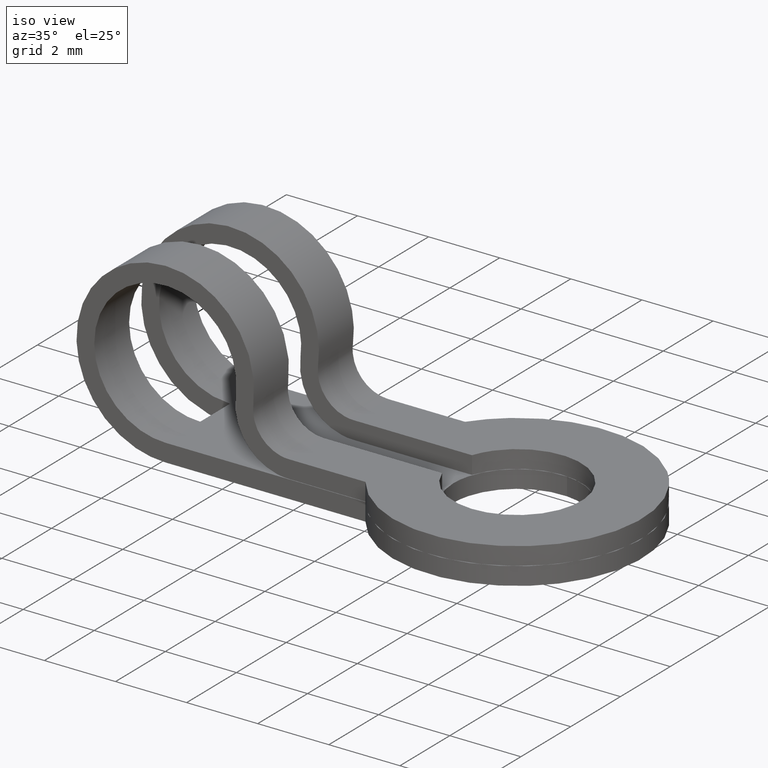
[diagram: clean part render]
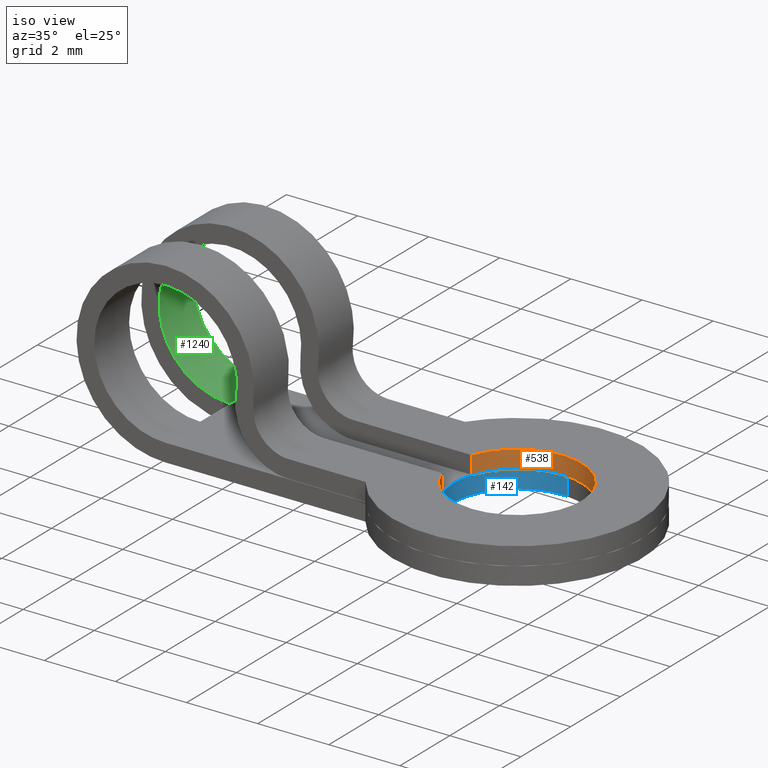
[diagram: same view with three faces highlighted in distinct colors, each labeled with its STEP entity id]
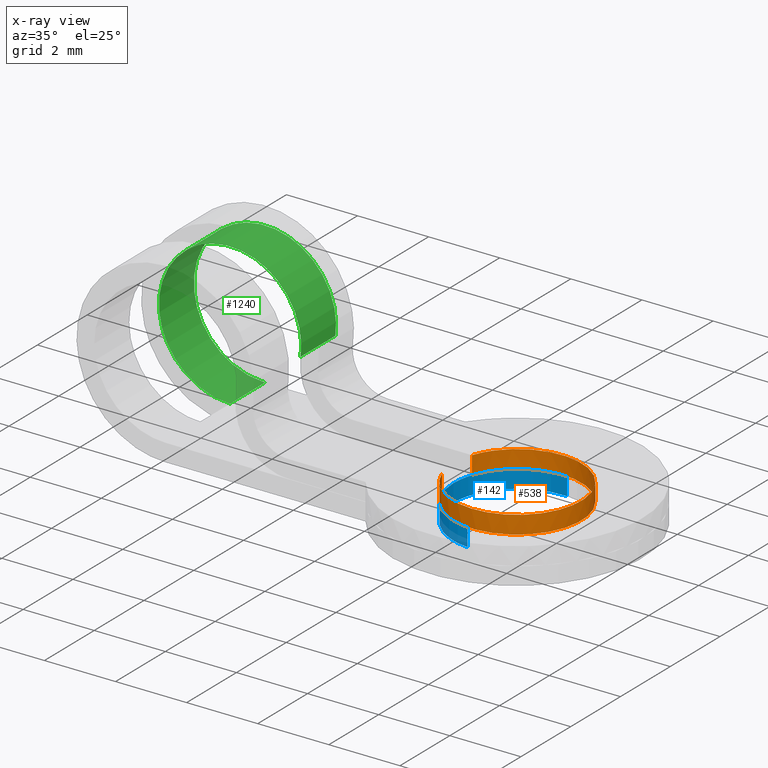
[diagram: x-ray of the same camera — body ghosted, the three highlighted faces saturated]
A machine part, iso view with three faces highlighted in distinct colors.
The next image is the same camera in x-ray (body ghosted, the three faces saturated) — at least one of them is partly hidden behind the body in this view.
Their STEP definitions:

[orange] entity #538 — the highlighted face is a freeform B-spline surface patch.
#278=CARTESIAN_POINT('',(7.202943725152349,0.600000000000156,-1.990000000000045));
#279=VERTEX_POINT('',#278);
#285=CARTESIAN_POINT('',(7.202943725152349,0.600000000000156,-1.490000000000000));
#286=VERTEX_POINT('',#285);
#287=CARTESIAN_POINT('',(7.202943725152349,0.600000000000156,-1.990000000000045));
#288=CARTESIAN_POINT('',(7.202943725152349,0.600000000000156,-1.490000000000000));
#289=QUASI_UNIFORM_CURVE('',1,(#287,#288),.UNSPECIFIED.,.F.,.U.);
#290=EDGE_CURVE('',#279,#286,#289,.T.);
#410=CARTESIAN_POINT('',(7.202943725152309,-0.600000000000045,-1.490000000000000));
#411=VERTEX_POINT('',#410);
#417=CARTESIAN_POINT('',(7.202943725152309,-0.600000000000045,-1.990000000000045));
#418=VERTEX_POINT('',#417);
#419=CARTESIAN_POINT('',(7.202943725152309,-0.600000000000045,-1.490000000000000));
#420=CARTESIAN_POINT('',(7.202943725152309,-0.600000000000045,-1.990000000000045));
#421=QUASI_UNIFORM_CURVE('',1,(#419,#420),.UNSPECIFIED.,.F.,.U.);
#422=EDGE_CURVE('',#411,#418,#421,.T.);
#470=CARTESIAN_POINT('',(7.178915998559314,-0.527133626308276,-1.477499999999999));
#471=CARTESIAN_POINT('',(7.178915998559314,-0.527133626308276,-2.002812500000046));
#472=CARTESIAN_POINT('',(7.637146268966073,-2.023249123428347,-1.477499999999999));
#473=CARTESIAN_POINT('',(7.637146268966073,-2.023249123428347,-2.002812500000045));
#474=CARTESIAN_POINT('',(9.182475000599778,-1.777697351642329,-1.477499999999999));
#475=CARTESIAN_POINT('',(9.182475000599778,-1.777697351642329,-2.002812500000046));
#476=CARTESIAN_POINT('',(10.727803732233482,-1.532145579856311,-1.477499999999999));
#477=CARTESIAN_POINT('',(10.727803732233482,-1.532145579856311,-2.002812500000045));
#478=CARTESIAN_POINT('',(10.699709844995020,0.032318320315157,-1.477499999999999));
#479=CARTESIAN_POINT('',(10.699709844995020,0.032318320315157,-2.002812500000046));
#480=CARTESIAN_POINT('',(10.671615957756558,1.596782220486626,-1.477499999999999));
#481=CARTESIAN_POINT('',(10.671615957756558,1.596782220486626,-2.002812500000045));
#482=CARTESIAN_POINT('',(9.118467399312856,1.786693033354491,-1.477499999999999));
#483=CARTESIAN_POINT('',(9.118467399312856,1.786693033354491,-2.002812500000046));
#484=CARTESIAN_POINT('',(7.565318840869152,1.976603846222359,-1.477499999999999));
#485=CARTESIAN_POINT('',(7.565318840869152,1.976603846222359,-2.002812500000045));
#486=CARTESIAN_POINT('',(7.161099725847080,0.465000899516226,-1.477499999999999));
#487=CARTESIAN_POINT('',(7.161099725847080,0.465000899516226,-2.002812500000046));
#495=(BOUNDED_SURFACE()B_SPLINE_SURFACE(1,2,((#470,#472,#474,#476,#478,#480,#482,#484,#486),(#471,#473,#475,#477,#479,#481,#483,#485,#487)),.UNSPECIFIED.,.F.,.F.,.U.)B_SPLINE_SURFACE_WITH_KNOTS((2,2),(3,2,2,2,3),(0.0,1.0),(0.0,2.691969692290592,5.383939384581185,8.075909076871778,10.767878769162371),.UNSPECIFIED.)GEOMETRIC_REPRESENTATION_ITEM()RATIONAL_B_SPLINE_SURFACE(((1.0,0.754709580222772,1.0,0.754709580222772,1.0,0.754709580222772,1.0,0.754709580222772,1.0),(1.0,0.754709580222772,1.0,0.754709580222772,1.0,0.754709580222772,1.0,0.754709580222772,1.0)))REPRESENTATION_ITEM('')SURFACE());
#496=ORIENTED_EDGE('',*,*,#290,.F.);
#497=CARTESIAN_POINT('',(7.202943725152342,0.600000000000158,-1.990000000000045));
#498=CARTESIAN_POINT('',(7.708767123412920,2.030684619971248,-1.990000000000046));
#499=CARTESIAN_POINT('',(9.204383561706486,1.774077407376261,-1.990000000000045));
#500=CARTESIAN_POINT('',(10.699999999999999,1.517470194781282,-1.990000000000046));
#501=CARTESIAN_POINT('',(10.699999999999999,0.0,-1.990000000000045));
#502=CARTESIAN_POINT('',(10.699999999999999,-1.517470194781383,-1.990000000000046));
#503=CARTESIAN_POINT('',(9.204383561706369,-1.774077407376280,-1.990000000000045));
#504=CARTESIAN_POINT('',(7.708767123412788,-2.030684619971169,-1.990000000000046));
#505=CARTESIAN_POINT('',(7.202943725152303,-0.600000000000047,-1.990000000000045));
#513=(BOUNDED_CURVE()B_SPLINE_CURVE(2,(#497,#498,#499,#500,#501,#502,#503,#504,#505),.UNSPECIFIED.,.F.,.U.)B_SPLINE_CURVE_WITH_KNOTS((3,2,2,2,3),(0.0,0.250000000000000,0.500000000000000,0.750000000000000,1.0),.UNSPECIFIED.)CURVE()GEOMETRIC_REPRESENTATION_ITEM()RATIONAL_B_SPLINE_CURVE((1.0,0.764559343257864,1.0,0.764559343257864,1.0,0.764559343257864,1.0,0.764559343257864,1.0))REPRESENTATION_ITEM(''));
#514=EDGE_CURVE('',#279,#418,#513,.T.);
#515=ORIENTED_EDGE('',*,*,#514,.T.);
#516=ORIENTED_EDGE('',*,*,#422,.F.);
#517=CARTESIAN_POINT('',(7.202943725152303,-0.600000000000048,-1.490000000000000));
#518=CARTESIAN_POINT('',(7.708767123412788,-2.030684619971169,-1.490000000000000));
#519=CARTESIAN_POINT('',(9.204383561706369,-1.774077407376280,-1.490000000000000));
#520=CARTESIAN_POINT('',(10.699999999999998,-1.517470194781383,-1.490000000000000));
#521=CARTESIAN_POINT('',(10.699999999999999,0.0,-1.490000000000000));
#522=CARTESIAN_POINT('',(10.699999999999998,1.517470194781283,-1.490000000000000));
#523=CARTESIAN_POINT('',(9.204383561706484,1.774077407376261,-1.490000000000000));
#524=CARTESIAN_POINT('',(7.708767123412920,2.030684619971247,-1.490000000000000));
#525=CARTESIAN_POINT('',(7.202943725152342,0.600000000000158,-1.490000000000000));
#533=(BOUNDED_CURVE()B_SPLINE_CURVE(2,(#517,#518,#519,#520,#521,#522,#523,#524,#525),.UNSPECIFIED.,.F.,.U.)B_SPLINE_CURVE_WITH_KNOTS((3,2,2,2,3),(0.0,0.250000000000000,0.500000000000000,0.750000000000000,1.0),.UNSPECIFIED.)CURVE()GEOMETRIC_REPRESENTATION_ITEM()RATIONAL_B_SPLINE_CURVE((1.0,0.764559343257864,1.0,0.764559343257864,1.0,0.764559343257864,1.0,0.764559343257864,1.0))REPRESENTATION_ITEM(''));
#534=EDGE_CURVE('',#411,#286,#533,.T.);
#535=ORIENTED_EDGE('',*,*,#534,.T.);
#536=EDGE_LOOP('',(#496,#515,#516,#535));
#537=FACE_OUTER_BOUND('',#536,.T.);
#538=ADVANCED_FACE('',(#537),#495,.F.);

[blue] entity #142 — the highlighted face is a freeform B-spline surface patch.
#44=CARTESIAN_POINT('',(8.758773627689878,-1.794451200719630,-1.987500000000001));
#45=CARTESIAN_POINT('',(6.964322426970250,-1.653224828409509,-1.987500000000001));
#46=CARTESIAN_POINT('',(7.105548799280371,0.141226372310122,-1.987500000000001));
#47=CARTESIAN_POINT('',(7.246775171590492,1.935677573029752,-1.987500000000001));
#48=CARTESIAN_POINT('',(9.041226372310122,1.794451200719630,-1.987500000000001));
#49=CARTESIAN_POINT('',(8.758773627689878,-1.794451200719630,-2.512812499999944));
#50=CARTESIAN_POINT('',(6.964322426970250,-1.653224828409509,-2.512812499999944));
#51=CARTESIAN_POINT('',(7.105548799280371,0.141226372310122,-2.512812499999944));
#52=CARTESIAN_POINT('',(7.246775171590492,1.935677573029752,-2.512812499999944));
#53=CARTESIAN_POINT('',(9.041226372310122,1.794451200719630,-2.512812499999944));
#61=(BOUNDED_SURFACE()B_SPLINE_SURFACE(2,1,((#44,#49),(#45,#50),(#46,#51),(#47,#52),(#48,#53)),.UNSPECIFIED.,.F.,.F.,.U.)B_SPLINE_SURFACE_WITH_KNOTS((3,2,3),(2,2),(3.141592653589793,4.712388980384690,6.283185307179586),(0.0,1.0),.UNSPECIFIED.)GEOMETRIC_REPRESENTATION_ITEM()RATIONAL_B_SPLINE_SURFACE(((1.0,1.0),(0.707106781186548,0.707106781186548),(1.0,1.0),(0.707106781186548,0.707106781186548),(1.0,1.0)))REPRESENTATION_ITEM('')SURFACE());
#62=CARTESIAN_POINT('',(7.100000000000001,0.0,-2.499999999999945));
#63=VERTEX_POINT('',#62);
#64=CARTESIAN_POINT('',(8.758775942928166,-1.794451382929829,-2.499999999999828));
#65=VERTEX_POINT('',#64);
#66=CARTESIAN_POINT('',(7.100000000000001,0.0,-2.499999999999945));
#67=CARTESIAN_POINT('',(7.100000000000001,-1.663905038426308,-2.499999999999946));
#68=CARTESIAN_POINT('',(8.758775942928166,-1.794451382929829,-2.499999999999828));
#76=(BOUNDED_CURVE()B_SPLINE_CURVE(2,(#66,#67,#68),.UNSPECIFIED.,.F.,.U.)B_SPLINE_CURVE_WITH_KNOTS((3,3),(0.0,0.236331521808242),.UNSPECIFIED.)CURVE()GEOMETRIC_REPRESENTATION_ITEM()RATIONAL_B_SPLINE_CURVE((1.0,0.723120399482009,0.969723817748618))REPRESENTATION_ITEM(''));
#77=EDGE_CURVE('',#63,#65,#76,.T.);
#78=ORIENTED_EDGE('',*,*,#77,.F.);
#79=CARTESIAN_POINT('',(9.041224057071837,1.794451382929829,-2.499999999999828));
#80=VERTEX_POINT('',#79);
#81=CARTESIAN_POINT('',(9.041224057071837,1.794451382929829,-2.499999999999829));
#82=CARTESIAN_POINT('',(8.970721029622666,1.800000000000000,-2.499999999999945));
#83=CARTESIAN_POINT('',(8.900000000000000,1.800000000000000,-2.499999999999945));
#84=CARTESIAN_POINT('',(7.100000000000001,1.800000000000001,-2.499999999999945));
#85=CARTESIAN_POINT('',(7.100000000000001,0.0,-2.499999999999945));
#93=(BOUNDED_CURVE()B_SPLINE_CURVE(2,(#81,#82,#83,#84,#85),.UNSPECIFIED.,.F.,.U.)B_SPLINE_CURVE_WITH_KNOTS((3,2,3),(0.736331521808242,0.750000000000000,1.0),.UNSPECIFIED.)CURVE()GEOMETRIC_REPRESENTATION_ITEM()RATIONAL_B_SPLINE_CURVE((0.969723817748617,0.983986381704538,1.0,0.707106781186547,1.0))REPRESENTATION_ITEM(''));
#94=EDGE_CURVE('',#80,#63,#93,.T.);
#95=ORIENTED_EDGE('',*,*,#94,.F.);
#96=CARTESIAN_POINT('',(9.041224085594362,1.794451380685131,-2.0));
#97=VERTEX_POINT('',#96);
#98=CARTESIAN_POINT('',(9.041224085594362,1.794451380685131,-2.0));
#99=CARTESIAN_POINT('',(9.041224057071837,1.794451382929829,-2.499999999999828));
#100=QUASI_UNIFORM_CURVE('',1,(#98,#99),.UNSPECIFIED.,.F.,.U.);
#101=EDGE_CURVE('',#97,#80,#100,.T.);
#102=ORIENTED_EDGE('',*,*,#101,.F.);
#103=CARTESIAN_POINT('',(7.100000000000001,0.0,-2.0));
#104=VERTEX_POINT('',#103);
#105=CARTESIAN_POINT('',(9.041224085594362,1.794451380685131,-2.0));
#106=CARTESIAN_POINT('',(8.970721043950107,1.800000000000000,-2.0));
#107=CARTESIAN_POINT('',(8.900000000000000,1.800000000000000,-2.0));
#108=CARTESIAN_POINT('',(7.100000000000001,1.800000000000001,-2.0));
#109=CARTESIAN_POINT('',(7.100000000000001,0.0,-2.0));
#117=(BOUNDED_CURVE()B_SPLINE_CURVE(2,(#105,#106,#107,#108,#109),.UNSPECIFIED.,.F.,.U.)B_SPLINE_CURVE_WITH_KNOTS((3,2,3),(0.736331519083475,0.750000000000000,1.0),.UNSPECIFIED.)CURVE()GEOMETRIC_REPRESENTATION_ITEM()RATIONAL_B_SPLINE_CURVE((0.969723812062226,0.983986378512276,1.0,0.707106781186547,1.0))REPRESENTATION_ITEM(''));
#118=EDGE_CURVE('',#97,#104,#117,.T.);
#119=ORIENTED_EDGE('',*,*,#118,.T.);
#120=CARTESIAN_POINT('',(8.758775914405639,-1.794451380685131,-2.0));
#121=VERTEX_POINT('',#120);
#122=CARTESIAN_POINT('',(7.100000000000001,0.0,-2.0));
#123=CARTESIAN_POINT('',(7.099999999999999,-1.663905011897021,-2.0));
#124=CARTESIAN_POINT('',(8.758775914405639,-1.794451380685132,-2.000000000000000));
#132=(BOUNDED_CURVE()B_SPLINE_CURVE(2,(#122,#123,#124),.UNSPECIFIED.,.F.,.U.)B_SPLINE_CURVE_WITH_KNOTS((3,3),(0.0,0.236331519083475),.UNSPECIFIED.)CURVE()GEOMETRIC_REPRESENTATION_ITEM()RATIONAL_B_SPLINE_CURVE((1.0,0.723120402674272,0.969723812062226))REPRESENTATION_ITEM(''));
#133=EDGE_CURVE('',#104,#121,#132,.T.);
#134=ORIENTED_EDGE('',*,*,#133,.T.);
#135=CARTESIAN_POINT('',(8.758775914405639,-1.794451380685131,-2.0));
#136=CARTESIAN_POINT('',(8.758775942928166,-1.794451382929829,-2.499999999999828));
#137=QUASI_UNIFORM_CURVE('',1,(#135,#136),.UNSPECIFIED.,.F.,.U.);
#138=EDGE_CURVE('',#121,#65,#137,.T.);
#139=ORIENTED_EDGE('',*,*,#138,.T.);
#140=EDGE_LOOP('',(#78,#95,#102,#119,#134,#139));
#141=FACE_OUTER_BOUND('',#140,.T.);
#142=ADVANCED_FACE('',(#141),#61,.F.);

[green] entity #1240 — the highlighted face is a freeform B-spline surface patch.
#231=CARTESIAN_POINT('',(0.400000000000006,0.600000000000045,-2.0));
#232=VERTEX_POINT('',#231);
#240=CARTESIAN_POINT('',(2.380303007117855,0.600000000000156,-0.280000000000000));
#241=VERTEX_POINT('',#240);
#242=CARTESIAN_POINT('',(0.400000000000006,0.600000000000045,-2.0));
#243=CARTESIAN_POINT('',(-0.987758630280445,0.600000000000045,-2.000000000000000));
#244=CARTESIAN_POINT('',(-1.473490562307195,0.600000000000045,-0.700023651704605));
#245=CARTESIAN_POINT('',(-1.959222494333946,0.600000000000045,0.599952696590790));
#246=CARTESIAN_POINT('',(-0.911487704860395,0.600000000000045,1.509966887054150));
#247=CARTESIAN_POINT('',(0.136247084613156,0.600000000000045,2.419981077517510));
#248=CARTESIAN_POINT('',(1.355418149985137,0.600000000000045,1.757036185933286));
#249=CARTESIAN_POINT('',(2.574589215357118,0.600000000000045,1.094091294349062));
#250=CARTESIAN_POINT('',(2.380303007117855,0.600000000000156,-0.280000000000000));
#258=(BOUNDED_CURVE()B_SPLINE_CURVE(2,(#242,#243,#244,#245,#246,#247,#248,#249,#250),.UNSPECIFIED.,.F.,.U.)B_SPLINE_CURVE_WITH_KNOTS((3,2,2,2,3),(0.0,0.250000000000000,0.500000000000000,0.750000000000000,1.0),.UNSPECIFIED.)CURVE()GEOMETRIC_REPRESENTATION_ITEM()RATIONAL_B_SPLINE_CURVE((1.0,0.821587434742129,1.0,0.821587434742129,1.0,0.821587434742129,1.0,0.821587434742129,1.0))REPRESENTATION_ITEM(''));
#259=EDGE_CURVE('',#232,#241,#258,.T.);
#898=CARTESIAN_POINT('',(2.380303007117855,2.000000000000225,-0.280000000000000));
#899=VERTEX_POINT('',#898);
#915=CARTESIAN_POINT('',(0.400000000000006,2.000000000000225,-2.0));
#916=VERTEX_POINT('',#915);
#917=CARTESIAN_POINT('',(0.400000000000006,2.000000000000225,-2.0));
#918=CARTESIAN_POINT('',(-0.987758630280445,2.000000000000225,-2.000000000000000));
#919=CARTESIAN_POINT('',(-1.473490562307195,2.000000000000225,-0.700023651704605));
#920=CARTESIAN_POINT('',(-1.959222494333946,2.000000000000225,0.599952696590790));
#921=CARTESIAN_POINT('',(-0.911487704860395,2.000000000000225,1.509966887054150));
#922=CARTESIAN_POINT('',(0.136247084613156,2.000000000000225,2.419981077517510));
#923=CARTESIAN_POINT('',(1.355418149985137,2.000000000000225,1.757036185933286));
#924=CARTESIAN_POINT('',(2.574589215357118,2.000000000000225,1.094091294349062));
#925=CARTESIAN_POINT('',(2.380303007117856,2.000000000000225,-0.280000000000000));
#933=(BOUNDED_CURVE()B_SPLINE_CURVE(2,(#917,#918,#919,#920,#921,#922,#923,#924,#925),.UNSPECIFIED.,.F.,.U.)B_SPLINE_CURVE_WITH_KNOTS((3,2,2,2,3),(0.0,0.250000000000000,0.500000000000000,0.750000000000000,1.0),.UNSPECIFIED.)CURVE()GEOMETRIC_REPRESENTATION_ITEM()RATIONAL_B_SPLINE_CURVE((1.0,0.821587434742129,1.0,0.821587434742129,1.0,0.821587434742129,1.0,0.821587434742129,1.0))REPRESENTATION_ITEM(''));
#934=EDGE_CURVE('',#916,#899,#933,.T.);
#1052=CARTESIAN_POINT('',(0.400000000000006,2.000000000000225,-2.0));
#1053=CARTESIAN_POINT('',(0.400000000000006,0.600000000000045,-2.0));
#1054=QUASI_UNIFORM_CURVE('',1,(#1052,#1053),.UNSPECIFIED.,.F.,.U.);
#1055=EDGE_CURVE('',#916,#232,#1054,.T.);
#1173=CARTESIAN_POINT('',(2.380303007117855,2.000000000000225,-0.280000000000000));
#1174=CARTESIAN_POINT('',(2.380303007117855,0.600000000000156,-0.280000000000000));
#1175=QUASI_UNIFORM_CURVE('',1,(#1173,#1174),.UNSPECIFIED.,.F.,.U.);
#1176=EDGE_CURVE('',#899,#241,#1175,.T.);
#1212=CARTESIAN_POINT('',(0.485570185017899,2.035000000000230,-1.998168597350084));
#1213=CARTESIAN_POINT('',(0.485570185017899,0.564125000000040,-1.998168597350084));
#1214=CARTESIAN_POINT('',(-1.695048191839909,2.035000000000230,-2.091552067698181));
#1215=CARTESIAN_POINT('',(-1.695048191839909,0.564125000000040,-2.091552067698181));
#1216=CARTESIAN_POINT('',(-1.598022895605858,2.035000000000230,0.088907303607538));
#1217=CARTESIAN_POINT('',(-1.598022895605858,0.564125000000040,0.088907303607538));
#1218=CARTESIAN_POINT('',(-1.500997599371804,2.035000000000230,2.269366674913257));
#1219=CARTESIAN_POINT('',(-1.500997599371804,0.564125000000040,2.269366674913257));
#1220=CARTESIAN_POINT('',(0.662708153968823,2.035000000000230,1.982671033186872));
#1221=CARTESIAN_POINT('',(0.662708153968823,0.564125000000040,1.982671033186872));
#1222=CARTESIAN_POINT('',(2.826413907309451,2.035000000000230,1.695975391460485));
#1223=CARTESIAN_POINT('',(2.826413907309451,0.564125000000040,1.695975391460485));
#1224=CARTESIAN_POINT('',(2.352229847035832,2.035000000000230,-0.434509636650875));
#1225=CARTESIAN_POINT('',(2.352229847035832,0.564125000000040,-0.434509636650875));
#1233=(BOUNDED_SURFACE()B_SPLINE_SURFACE(1,2,((#1212,#1214,#1216,#1218,#1220,#1222,#1224),(#1213,#1215,#1217,#1219,#1221,#1223,#1225)),.UNSPECIFIED.,.F.,.F.,.U.)B_SPLINE_SURFACE_WITH_KNOTS((2,2),(3,2,2,3),(0.0,1.0),(0.0,3.520084247134668,7.040168494269336,10.560252741404000),.UNSPECIFIED.)GEOMETRIC_REPRESENTATION_ITEM()RATIONAL_B_SPLINE_SURFACE(((1.0,0.675590207615660,1.0,0.675590207615660,1.0,0.675590207615660,1.0),(1.0,0.675590207615660,1.0,0.675590207615660,1.0,0.675590207615660,1.0)))REPRESENTATION_ITEM('')SURFACE());
#1234=ORIENTED_EDGE('',*,*,#1176,.T.);
#1235=ORIENTED_EDGE('',*,*,#259,.F.);
#1236=ORIENTED_EDGE('',*,*,#1055,.F.);
#1237=ORIENTED_EDGE('',*,*,#934,.T.);
#1238=EDGE_LOOP('',(#1234,#1235,#1236,#1237));
#1239=FACE_OUTER_BOUND('',#1238,.T.);
#1240=ADVANCED_FACE('',(#1239),#1233,.F.);